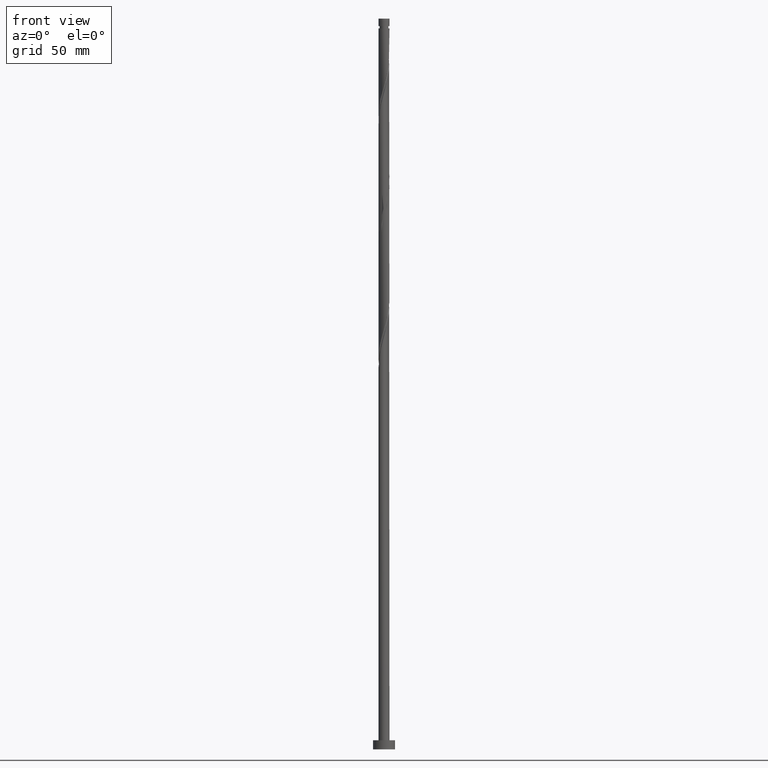
[diagram: clean part render]
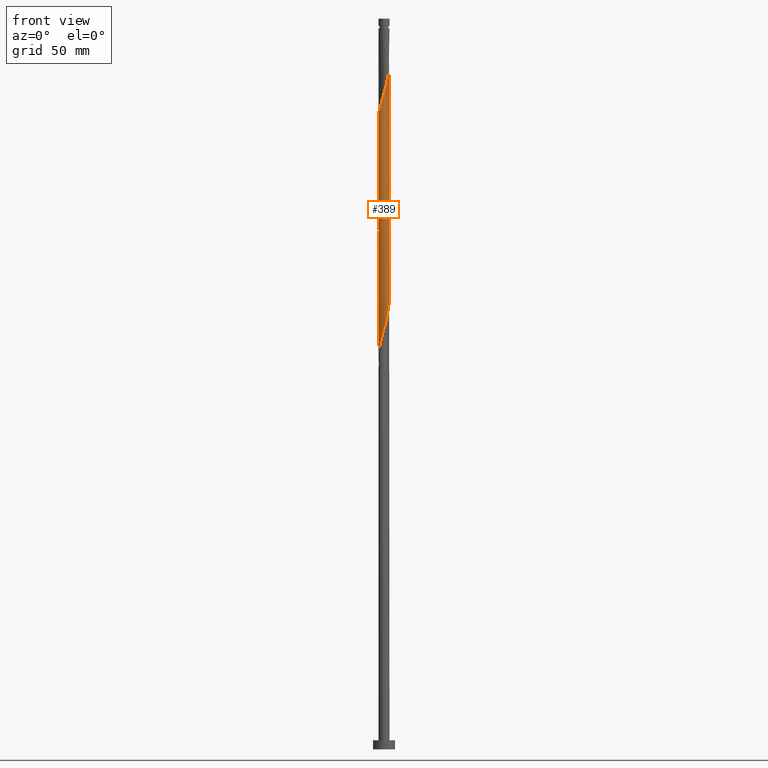
[diagram: same view with one face highlighted and labeled with its STEP entity id]
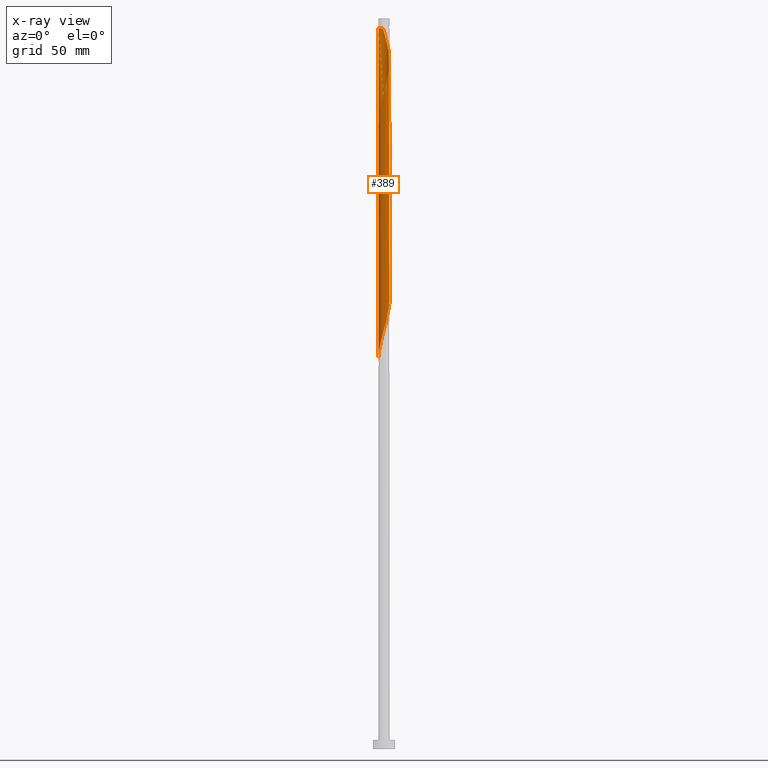
[diagram: x-ray of the same camera — body ghosted, the highlighted face saturated]
A machine part, front view. The second image highlights one B-rep face of the part: STEP entity #389.
The next image is the same camera in x-ray: the body ghosted, the highlighted face saturated — about 0% of this face is hidden behind the body in this view.
In plain terms, the highlighted cylindrical surface (bore or boss wall) has radius 3 mm, axis along (-0, -0, -1).
Its self-contained STEP definition (entity closure, byte-faithful):
#2 = CARTESIAN_POINT ( 'NONE',  ( 2.986297077045549919, -0.2864083930844416037, 312.4611709368597872 ) ) ;
#8 = VERTEX_POINT ( 'NONE', #466 ) ;
#13 = CARTESIAN_POINT ( 'NONE',  ( 0.9582386936374889252, -2.860279830445435767, 300.2389487146376723 ) ) ;
#32 = CARTESIAN_POINT ( 'NONE',  ( 0.9582386936374929221, 2.860279830445437987, 389.1278376035264159 ) ) ;
#35 = CARTESIAN_POINT ( 'NONE',  ( 3.000000000000000888, 1.614428865431810127E-15, 313.4755030692701325 ) ) ;
#56 = CARTESIAN_POINT ( 'NONE',  ( -1.195207115623887928, -2.751632233922626458, 225.7945042701931015 ) ) ;
#64 = CARTESIAN_POINT ( 'NONE',  ( 0.3426132633519641257, 2.997004880578675312, 391.3500598257485308 ) ) ;
#66 = EDGE_LOOP ( 'NONE', ( #1544, #1873, #815, #1641, #1765, #610, #1380, #664 ) ) ;
#68 = CARTESIAN_POINT ( 'NONE',  ( -2.611625341554438151, 1.476283534877587567, 274.6833931590820157 ) ) ;
#71 = CARTESIAN_POINT ( 'NONE',  ( 0.2879860105828867534, 3.002746436205628644, 329.1278376035265296 ) ) ;
#77 = CARTESIAN_POINT ( 'NONE',  ( -2.247618455994260689, 1.987010638188425604, 272.4611709368597872 ) ) ;
#82 = CARTESIAN_POINT ( 'NONE',  ( -2.456461689585819563, 1.750776419202128897, 340.2389487146375018 ) ) ;
#86 = CARTESIAN_POINT ( 'NONE',  ( 2.986297077045549919, -0.2864083930844416037, 245.7945042701931015 ) ) ;
#89 = CARTESIAN_POINT ( 'NONE',  ( 2.211065689225171660, 2.027606598413808747, 321.3500598257485876 ) ) ;
#95 = CARTESIAN_POINT ( 'NONE',  ( -1.997955648279249319, -2.259998966801996634, 289.1278376035264728 ) ) ;
#116 = VERTEX_POINT ( 'NONE', #1490 ) ;
#117 = CARTESIAN_POINT ( 'NONE',  ( 2.584311715169903323, -1.523592123514564634, 370.2389487146375586 ) ) ;
#127 = CARTESIAN_POINT ( 'NONE',  ( -0.6504259784947280520, -2.928642355512055317, 356.9056153813042442 ) ) ;
#130 = CARTESIAN_POINT ( 'NONE',  ( -3.000000000000000444, 0.000000000000000000, 400.0000000000000000 ) ) ;
#183 = CARTESIAN_POINT ( 'NONE',  ( -0.2879860105828880301, -3.002746436205629088, 295.7945042701930447 ) ) ;
#200 = CARTESIAN_POINT ( 'NONE',  ( 2.944774136347767968, 0.6540087066196469401, 249.1278376035264728 ) ) ;
#203 = CARTESIAN_POINT ( 'NONE',  ( -2.611625341554438151, 1.476283534877587567, 341.3500598257486445 ) ) ;
#205 = CARTESIAN_POINT ( 'NONE',  ( 2.611625341554442592, 1.476283534877588677, 381.3500598257487013 ) ) ;
#208 = CARTESIAN_POINT ( 'NONE',  ( 2.424175730171096443, 1.795214230025620639, 253.5722820479709014 ) ) ;
#212 = CARTESIAN_POINT ( 'NONE',  ( -2.861491667719896270, 0.9010357570982429065, 343.5722820479709299 ) ) ;
#217 = CARTESIAN_POINT ( 'NONE',  ( 2.456461689585818675, -1.750776419202130008, 240.2389487146375870 ) ) ;
#220 = CARTESIAN_POINT ( 'NONE',  ( -3.000000000000000888, -9.566985869225540177E-16, 346.8088364026035038 ) ) ;
#226 = CARTESIAN_POINT ( 'NONE',  ( -2.980586974261064448, -0.3407363920471025986, 281.3500598257486445 ) ) ;
#230 = CARTESIAN_POINT ( 'NONE',  ( 0.9059989139450667084, 2.877253563794369917, 326.9056153813041874 ) ) ;
#234 = CARTESIAN_POINT ( 'NONE',  ( 2.584311715169900658, 1.523592123514559749, 252.4611709368597019 ) ) ;
#252 = AXIS2_PLACEMENT_3D ( 'NONE', #1616, #1068, #1187 ) ;
#253 = CARTESIAN_POINT ( 'NONE',  ( 2.211065689225174324, -2.027606598413812744, 368.0167264924152732 ) ) ;
#261 = CARTESIAN_POINT ( 'NONE',  ( -2.247618455994265574, -1.987010638188426936, 350.2389487146376155 ) ) ;
#263 = DIRECTION ( 'NONE',  ( -0.000000000000000000, -0.000000000000000000, -1.000000000000000000 ) ) ;
#299 = CARTESIAN_POINT ( 'NONE',  ( 2.611625341554438151, -1.476283534877588011, 308.0167264924153301 ) ) ;
#307 = CARTESIAN_POINT ( 'NONE',  ( 1.245111594254572740, 2.729413328510884806, 388.0167264924153869 ) ) ;
#339 = CARTESIAN_POINT ( 'NONE',  ( 2.611625341554438151, -1.476283534877588011, 241.3500598257486729 ) ) ;
#348 = CARTESIAN_POINT ( 'NONE',  ( 1.195207115623888594, 2.751632233922626458, 259.1278376035264159 ) ) ;
#357 = CARTESIAN_POINT ( 'NONE',  ( -2.211065689225171216, -2.027606598413808747, 288.0167264924153301 ) ) ;
#364 = EDGE_CURVE ( 'NONE', #1463, #1056, #548, .T. ) ;
#368 = CARTESIAN_POINT ( 'NONE',  ( 2.744447700168707538, 1.251970017003499303, 251.3500598257487013 ) ) ;
#372 = CARTESIAN_POINT ( 'NONE',  ( 3.000000000000000888, 0.1709212123392928606, 314.0810943786546545 ) ) ;
#378 = VECTOR ( 'NONE', #1872, 1000.000000000000000 ) ;
#380 = CARTESIAN_POINT ( 'NONE',  ( -0.2879860105828880301, -3.002746436205629088, 229.1278376035263875 ) ) ;
#389 = ADVANCED_FACE ( 'NONE', ( #845 ), #1730, .T. ) ;
#390 = CARTESIAN_POINT ( 'NONE',  ( -2.956194341916742019, -0.6002808636434374678, 344.6833931590820157 ) ) ;
#408 = CARTESIAN_POINT ( 'NONE',  ( 1.484415317302711035, -2.626010904050888772, 364.6833931590819589 ) ) ;
#461 = CARTESIAN_POINT ( 'NONE',  ( 2.956194341916738466, -0.6002808636434379119, 311.3500598257488150 ) ) ;
#466 = CARTESIAN_POINT ( 'NONE',  ( 3.000000000000000444, 3.673940397442059868E-16, 394.6833931590819589 ) ) ;
#470 = CARTESIAN_POINT ( 'NONE',  ( 2.038775222402703147, -2.223244857174723421, 304.6833931590821294 ) ) ;
#484 = CARTESIAN_POINT ( 'NONE',  ( 2.956194341916742019, 0.6002808636434371348, 378.0167264924153301 ) ) ;
#489 = CARTESIAN_POINT ( 'NONE',  ( -2.861491667719896270, 0.9010357570982429065, 276.9056153813041306 ) ) ;
#494 = CARTESIAN_POINT ( 'NONE',  ( 1.531984494871655222, 2.598546826576329405, 386.9056153813041306 ) ) ;
#497 = CARTESIAN_POINT ( 'NONE',  ( -1.741185482790979400, -2.443004935426439150, 290.2389487146375586 ) ) ;
#500 = CARTESIAN_POINT ( 'NONE',  ( 0.5969924622639761758, 2.939999999999999503, 328.0167264924153301 ) ) ;
#507 = CARTESIAN_POINT ( 'NONE',  ( -2.956194341916738466, 0.6002808636434376899, 278.0167264924154438 ) ) ;
#510 = CARTESIAN_POINT ( 'NONE',  ( 3.000000000000000888, 1.614428865431810127E-15, 313.4755030692701325 ) ) ;
#516 = CARTESIAN_POINT ( 'NONE',  ( 1.741185482790980732, 2.443004935426438706, 256.9056153813041874 ) ) ;
#520 = CARTESIAN_POINT ( 'NONE',  ( -2.956194341916738466, 0.6002808636434376899, 344.6833931590820157 ) ) ;
#525 = CARTESIAN_POINT ( 'NONE',  ( 0.02731362638453692718, -2.999875658392148647, 230.2389487146375302 ) ) ;
#529 = CARTESIAN_POINT ( 'NONE',  ( -0.6504259784947257206, 2.928642355512051321, 332.4611709368597872 ) ) ;
#536 = CARTESIAN_POINT ( 'NONE',  ( -2.744447700168707094, -1.251970017003499747, 218.0167264924153585 ) ) ;
#544 = CARTESIAN_POINT ( 'NONE',  ( -3.000000000000005329, -1.898448758424430341E-15, 342.5579499155604708 ) ) ;
#545 = CARTESIAN_POINT ( 'NONE',  ( -0.3426132633519634596, -2.997004880578674424, 358.0167264924152732 ) ) ;
#548 = LINE ( 'NONE', #130, #378 ) ;
#557 = CARTESIAN_POINT ( 'NONE',  ( -0.9582386936374922559, -2.860279830445437987, 355.7945042701931015 ) ) ;
#567 = CARTESIAN_POINT ( 'NONE',  ( -2.211065689225171216, -2.027606598413808747, 221.3500598257486445 ) ) ;
#568 = CARTESIAN_POINT ( 'NONE',  ( -2.766788993523061180, -1.201790650553048012, 346.9056153813041306 ) ) ;
#579 = CARTESIAN_POINT ( 'NONE',  ( -2.980586974261064448, -0.3407363920471025986, 214.6833931590819873 ) ) ;
#580 = CARTESIAN_POINT ( 'NONE',  ( -2.611625341554442592, -1.476283534877588899, 348.0167264924152732 ) ) ;
#598 = CARTESIAN_POINT ( 'NONE',  ( 2.861491667719896270, -0.9010357570982445718, 310.2389487146375586 ) ) ;
#610 = ORIENTED_EDGE ( 'NONE', *, *, #1264, .F. ) ;
#645 = CARTESIAN_POINT ( 'NONE',  ( -1.484415317302709703, -2.626010904050884331, 224.6833931590820441 ) ) ;
#655 = CARTESIAN_POINT ( 'NONE',  ( -1.531984494871650337, 2.598546826576327184, 269.1278376035264728 ) ) ;
#658 = CARTESIAN_POINT ( 'NONE',  ( -0.9582386936374893693, 2.860279830445435767, 333.5722820479709299 ) ) ;
#663 = CARTESIAN_POINT ( 'NONE',  ( -0.6504259784947257206, 2.928642355512051321, 265.7945042701931015 ) ) ;
#664 = ORIENTED_EDGE ( 'NONE', *, *, #1158, .F. ) ;
#671 = CARTESIAN_POINT ( 'NONE',  ( 0.6504259784947244993, -2.928642355512052209, 232.4611709368597872 ) ) ;
#675 = CARTESIAN_POINT ( 'NONE',  ( 1.484415317302710591, 2.626010904050883887, 324.6833931590820157 ) ) ;
#679 = CARTESIAN_POINT ( 'NONE',  ( -2.844610918258237753, -0.9529893618115735654, 283.5722820479709867 ) ) ;
#684 = EDGE_CURVE ( 'NONE', #1879, #116, #1706, .T. ) ;
#690 = CARTESIAN_POINT ( 'NONE',  ( -2.861491667719902043, -0.9010357570982429065, 345.7945042701931584 ) ) ;
#698 = CARTESIAN_POINT ( 'NONE',  ( -3.000000000000000444, -0.1709212123392981619, 214.0810943786546829 ) ) ;
#700 = CARTESIAN_POINT ( 'NONE',  ( 2.744447700168710202, -1.251970017003502633, 371.3500598257487013 ) ) ;
#723 = CARTESIAN_POINT ( 'NONE',  ( 1.195207115623887484, -2.751632233922633120, 363.5722820479708730 ) ) ;
#726 = CARTESIAN_POINT ( 'NONE',  ( 0.000000000000000000, 0.000000000000000000, 400.0000000000000000 ) ) ;
#741 = CARTESIAN_POINT ( 'NONE',  ( 3.000000000000000444, -0.1435319978602540014, 312.9669545437059810 ) ) ;
#747 = CARTESIAN_POINT ( 'NONE',  ( 2.456461689585818675, -1.750776419202130008, 306.9056153813043011 ) ) ;
#757 = CARTESIAN_POINT ( 'NONE',  ( 1.245111594254569631, -2.729413328510880810, 301.3500598257486445 ) ) ;
#765 =( BOUNDED_CURVE ( )  B_SPLINE_CURVE ( 2, ( #973, #1859, #1112, #390, #690, #568, #580, #1267, #261, #1421, #1850, #1430, #1726, #557, #127, #545, #1120, #865, #1690, #1440, #723, #408, #981, #1563, #253, #842, #117, #700, #1130, #1716, #781, #1217, #1330, #484, #1511, #1802, #205, #790, #1657, #1367, #1772, #494, #307, #32, #772, #64, #1039, #1151, #1628 ),
 .UNSPECIFIED., .F., .T. ) 
 B_SPLINE_CURVE_WITH_KNOTS ( ( 3, 2, 2, 2, 2, 2, 2, 2, 2, 2, 2, 2, 2, 2, 2, 2, 2, 2, 2, 2, 2, 2, 2, 2, 3 ),
 ( 0.5545286012773114059, 0.5583333333333333481, 0.5666666666666666519, 0.5749999999999999556, 0.5833333333333332593, 0.5916666666666666741, 0.5999999999999999778, 0.6083333333333333925, 0.6166666666666666963, 0.6250000000000000000, 0.6333333333333333037, 0.6416666666666666075, 0.6500000000000000222, 0.6583333333333334370, 0.6666666666666668517, 0.6750000000000000444, 0.6833333333333334592, 0.6916666666666667629, 0.7000000000000000666, 0.7083333333333333703, 0.7166666666666667851, 0.7250000000000000888, 0.7333333333333335036, 0.7416666666666668073, 0.7500000000000001110 ),
 .UNSPECIFIED. ) 
 CURVE ( )  GEOMETRIC_REPRESENTATION_ITEM ( )  RATIONAL_B_SPLINE_CURVE ( ( 0.9066196499552512389, 0.9068171577856640742, 0.9090909090909630175, 0.9041108139712111802, 0.9090909090909630175, 0.9041108139712111802, 0.9090909090909630175, 0.9041108139712111802, 0.9090909090909630175, 0.9041108139712111802, 0.9090909090909630175, 0.9041108139712111802, 0.9090909090909630175, 0.9041108139712111802, 0.9090909090909630175, 0.9041108139712111802, 0.9090909090909630175, 0.9041108139712111802, 0.9090909090909630175, 0.9041108139712111802, 0.9090909090909630175, 0.9041108139712111802, 0.9090909090909630175, 0.9041108139712111802, 0.9090909090909630175, 0.9041108139712111802, 0.9090909090909630175, 0.9041108139712111802, 0.9090909090909630175, 0.9041108139712111802, 0.9090909090909630175, 0.9041108139712111802, 0.9090909090909630175, 0.9041108139712111802, 0.9090909090909630175, 0.9041108139712111802, 0.9090909090909630175, 0.9041108139712111802, 0.9090909090909630175, 0.9041108139712111802, 0.9090909090909630175, 0.9041108139712111802, 0.9090909090909630175, 0.9041108139712111802, 0.9090909090909630175, 0.9041108139712111802, 0.9090909090909630175, 0.9041108139712110692, 0.9090909090909631285 ) ) 
 REPRESENTATION_ITEM ( '' )  );
#772 = CARTESIAN_POINT ( 'NONE',  ( 0.6504259784947296064, 2.928642355512054873, 390.2389487146375586 ) ) ;
#781 = CARTESIAN_POINT ( 'NONE',  ( 2.980586974261069333, -0.3407363920471043750, 374.6833931590821294 ) ) ;
#784 = CARTESIAN_POINT ( 'NONE',  ( 1.484415317302710591, 2.626010904050883887, 258.0167264924153301 ) ) ;
#789 = EDGE_CURVE ( 'NONE', #1879, #1433, #765, .T. ) ;
#790 = CARTESIAN_POINT ( 'NONE',  ( 2.456461689585824892, 1.750776419202128897, 382.4611709368597303 ) ) ;
#795 = CARTESIAN_POINT ( 'NONE',  ( 2.980586974261064448, 0.3407363920471022656, 248.0167264924153585 ) ) ;
#803 = CARTESIAN_POINT ( 'NONE',  ( 0.5969924622639761758, 2.939999999999999503, 261.3500598257487013 ) ) ;
#814 = CARTESIAN_POINT ( 'NONE',  ( 0.2879860105828867534, 3.002746436205628644, 262.4611709368598440 ) ) ;
#815 = ORIENTED_EDGE ( 'NONE', *, *, #789, .F. ) ;
#818 = CARTESIAN_POINT ( 'NONE',  ( 1.741185482790980732, 2.443004935426438706, 323.5722820479708730 ) ) ;
#824 = CARTESIAN_POINT ( 'NONE',  ( -2.584311715169900214, -1.523592123514559971, 285.7945042701931015 ) ) ;
#842 = CARTESIAN_POINT ( 'NONE',  ( 2.424175730171096887, -1.795214230025625968, 369.1278376035264159 ) ) ;
#845 = FACE_OUTER_BOUND ( 'NONE', #66, .T. ) ;
#865 = CARTESIAN_POINT ( 'NONE',  ( 0.2879860105828858097, -3.002746436205632197, 360.2389487146376723 ) ) ;
#878 = EDGE_CURVE ( 'NONE', #1463, #1433, #1076, .T. ) ;
#884 = CARTESIAN_POINT ( 'NONE',  ( 3.000000000000000888, 1.614428865431810127E-15, 313.4755030692701325 ) ) ;
#898 = CARTESIAN_POINT ( 'NONE',  ( 2.247618455994260689, -1.987010638188426048, 305.7945042701930447 ) ) ;
#907 = CARTESIAN_POINT ( 'NONE',  ( 1.531984494871650115, -2.598546826576327184, 302.4611709368597303 ) ) ;
#924 = CARTESIAN_POINT ( 'NONE',  ( 1.785379858637176298, -2.410895841875525303, 236.9056153813041874 ) ) ;
#934 = CARTESIAN_POINT ( 'NONE',  ( -0.02731362638453766964, 2.999875658392149091, 263.5722820479708162 ) ) ;
#937 = CARTESIAN_POINT ( 'NONE',  ( -1.245111594254569853, 2.729413328510880810, 334.6833931590820157 ) ) ;
#943 = CARTESIAN_POINT ( 'NONE',  ( 2.844610918258238197, 0.9529893618115723442, 250.2389487146375302 ) ) ;
#946 = CARTESIAN_POINT ( 'NONE',  ( -2.247618455994260689, 1.987010638188425604, 339.1278376035263591 ) ) ;
#951 = CARTESIAN_POINT ( 'NONE',  ( 0.9582386936374889252, -2.860279830445435767, 233.5722820479708730 ) ) ;
#961 = CARTESIAN_POINT ( 'NONE',  ( -2.744447700168707094, -1.251970017003499747, 284.6833931590820725 ) ) ;
#965 = CARTESIAN_POINT ( 'NONE',  ( -2.986297077045549919, 0.2864083930844405490, 345.7945042701931015 ) ) ;
#971 = CARTESIAN_POINT ( 'NONE',  ( -2.584311715169900214, -1.523592123514559971, 219.1278376035264159 ) ) ;
#973 = CARTESIAN_POINT ( 'NONE',  ( -3.000000000000005329, -1.898448758424430341E-15, 342.5579499155605276 ) ) ;
#975 = CARTESIAN_POINT ( 'NONE',  ( -1.785379858637176742, 2.410895841875524859, 336.9056153813042442 ) ) ;
#980 = CARTESIAN_POINT ( 'NONE',  ( -2.424175730171095111, -1.795214230025621971, 220.2389487146375302 ) ) ;
#981 = CARTESIAN_POINT ( 'NONE',  ( 1.741185482790980066, -2.443004935426445368, 365.7945042701931015 ) ) ;
#988 = VECTOR ( 'NONE', #1143, 1000.000000000000000 ) ;
#1000 = CARTESIAN_POINT ( 'NONE',  ( -1.997955648279249319, -2.259998966801996634, 222.4611709368597303 ) ) ;
#1009 = CARTESIAN_POINT ( 'NONE',  ( -0.5969924622640415679, 2.940000000000872582, 394.6833931590818452 ) ) ;
#1039 = CARTESIAN_POINT ( 'NONE',  ( 0.02731362638453996294, 2.999875658392153088, 392.4611709368598440 ) ) ;
#1056 = VERTEX_POINT ( 'NONE', #1637 ) ;
#1063 = CARTESIAN_POINT ( 'NONE',  ( -0.9582386936374893693, 2.860279830445435767, 266.9056153813043011 ) ) ;
#1068 = DIRECTION ( 'NONE',  ( -0.000000000000000000, -0.000000000000000000, -1.000000000000000000 ) ) ;
#1071 = CARTESIAN_POINT ( 'NONE',  ( -2.944774136347767968, -0.6540087066196482724, 282.4611709368596735 ) ) ;
#1076 = CIRCLE ( 'NONE', #252, 2.999999999999964473 ) ;
#1082 = CARTESIAN_POINT ( 'NONE',  ( -2.766788993523056295, 1.201790650553048012, 275.7945042701931015 ) ) ;
#1089 = CARTESIAN_POINT ( 'NONE',  ( 2.766788993523055851, -1.201790650553048678, 242.4611709368597872 ) ) ;
#1093 = CARTESIAN_POINT ( 'NONE',  ( -0.3426132633519623494, 2.997004880578669983, 331.3500598257486445 ) ) ;
#1099 = CARTESIAN_POINT ( 'NONE',  ( -1.195207115623887928, -2.751632233922626458, 292.4611709368598440 ) ) ;
#1102 = CARTESIAN_POINT ( 'NONE',  ( 2.944774136347767968, 0.6540087066196469401, 315.7945042701930447 ) ) ;
#1112 = CARTESIAN_POINT ( 'NONE',  ( -2.986297077045553916, -0.2864083930844393833, 343.5722820479708162 ) ) ;
#1114 = CARTESIAN_POINT ( 'NONE',  ( -3.000000000000000444, 0.1435319978602473123, 346.3002878770394091 ) ) ;
#1120 = CARTESIAN_POINT ( 'NONE',  ( -0.02731362638453954314, -2.999875658392153088, 359.1278376035264159 ) ) ;
#1130 = CARTESIAN_POINT ( 'NONE',  ( 2.844610918258240861, -0.9529893618115774512, 372.4611709368599008 ) ) ;
#1143 = DIRECTION ( 'NONE',  ( -0.000000000000000000, -0.000000000000000000, -1.000000000000000000 ) ) ;
#1151 = CARTESIAN_POINT ( 'NONE',  ( -0.2879860105828883632, 3.002746436205632197, 393.5722820479708162 ) ) ;
#1154 = DIRECTION ( 'NONE',  ( -1.000000000000000000, 0.000000000000000000, 0.000000000000000000 ) ) ;
#1158 = EDGE_CURVE ( 'NONE', #1056, #1754, #1750, .T. ) ;
#1162 =( BOUNDED_CURVE ( )  B_SPLINE_CURVE ( 2, ( #884, #741, #2, #461, #598, #1172, #299, #747, #898, #470, #1325, #907, #757, #13, #1775, #1485, #1631, #183, #1652, #1388, #1099, #1249, #497, #95, #357, #1398, #824, #961, #679, #1071, #226, #1257, #1526, #507, #489, #1082, #68, #1832, #77, #1370, #1543, #655, #1671, #1063, #663, #1221, #934, #814, #803, #1806, #348, #784, #516, #1514, #1662, #208, #234, #368, #943, #200, #795, #1230, #86, #1687, #1814, #1089, #339, #217, #1379, #1240, #924, #1823, #1679, #951, #671, #1534, #525, #380, #1362, #1505, #56, #645, #1868, #1000, #567, #980, #971, #536, #1419, #1583, #579, #698, #1714 ),
 .UNSPECIFIED., .F., .T. ) 
 B_SPLINE_CURVE_WITH_KNOTS ( ( 3, 2, 2, 2, 2, 2, 2, 2, 2, 2, 2, 2, 2, 2, 2, 2, 2, 2, 2, 2, 2, 2, 2, 2, 2, 2, 2, 2, 2, 2, 2, 2, 2, 2, 2, 2, 2, 2, 2, 2, 2, 2, 2, 2, 2, 2, 3 ),
 ( 0.5545286012773115170, 0.5583333333333333481, 0.5666666666666666519, 0.5749999999999999556, 0.5833333333333333703, 0.5916666666666666741, 0.5999999999999999778, 0.6083333333333332815, 0.6166666666666666963, 0.6250000000000000000, 0.6333333333333333037, 0.6416666666666667185, 0.6500000000000000222, 0.6583333333333333259, 0.6666666666666666297, 0.6750000000000000444, 0.6833333333333333481, 0.6916666666666666519, 0.6999999999999999556, 0.7083333333333333703, 0.7166666666666666741, 0.7249999999999999778, 0.7333333333333332815, 0.7416666666666666963, 0.7500000000000000000, 0.7583333333333333037, 0.7666666666666667185, 0.7750000000000000222, 0.7833333333333333259, 0.7916666666666666297, 0.8000000000000000444, 0.8083333333333333481, 0.8166666666666666519, 0.8249999999999999556, 0.8333333333333333703, 0.8416666666666666741, 0.8499999999999999778, 0.8583333333333332815, 0.8666666666666666963, 0.8750000000000000000, 0.8833333333333333037, 0.8916666666666667185, 0.9000000000000001332, 0.9083333333333334370, 0.9166666666666667407, 0.9250000000000000444, 0.9295286012773114059 ),
 .UNSPECIFIED. ) 
 CURVE ( )  GEOMETRIC_REPRESENTATION_ITEM ( )  RATIONAL_B_SPLINE_CURVE ( ( 0.9066196499552450216, 0.9068171577856578569, 0.9090909090909568002, 0.9041108139712048519, 0.9090909090909568002, 0.9041108139712048519, 0.9090909090909568002, 0.9041108139712048519, 0.9090909090909568002, 0.9041108139712048519, 0.9090909090909568002, 0.9041108139712048519, 0.9090909090909568002, 0.9041108139712048519, 0.9090909090909568002, 0.9041108139712048519, 0.9090909090909568002, 0.9041108139712048519, 0.9090909090909568002, 0.9041108139712048519, 0.9090909090909568002, 0.9041108139712048519, 0.9090909090909568002, 0.9041108139712048519, 0.9090909090909568002, 0.9041108139712048519, 0.9090909090909568002, 0.9041108139712048519, 0.9090909090909568002, 0.9041108139712048519, 0.9090909090909568002, 0.9041108139712048519, 0.9090909090909568002, 0.9041108139712048519, 0.9090909090909568002, 0.9041108139712048519, 0.9090909090909568002, 0.9041108139712048519, 0.9090909090909568002, 0.9041108139712048519, 0.9090909090909568002, 0.9041108139712048519, 0.9090909090909568002, 0.9041108139712048519, 0.9090909090909568002, 0.9041108139712048519, 0.9090909090909568002, 0.9041108139712048519, 0.9090909090909568002, 0.9041108139712048519, 0.9090909090909568002, 0.9041108139712048519, 0.9090909090909568002, 0.9041108139712048519, 0.9090909090909568002, 0.9041108139712048519, 0.9090909090909568002, 0.9041108139712048519, 0.9090909090909568002, 0.9041108139712048519, 0.9090909090909568002, 0.9041108139712048519, 0.9090909090909568002, 0.9041108139712048519, 0.9090909090909568002, 0.9041108139712048519, 0.9090909090909568002, 0.9041108139712048519, 0.9090909090909568002, 0.9041108139712048519, 0.9090909090909568002, 0.9041108139712048519, 0.9090909090909568002, 0.9041108139712048519, 0.9090909090909568002, 0.9041108139712048519, 0.9090909090909568002, 0.9041108139712048519, 0.9090909090909568002, 0.9041108139712048519, 0.9090909090909568002, 0.9041108139712048519, 0.9090909090909568002, 0.9041108139712048519, 0.9090909090909568002, 0.9041108139712048519, 0.9090909090909568002, 0.9041108139712048519, 0.9090909090909568002, 0.9041108139712048519, 0.9090909090909568002, 0.9063845652765039063, 0.9066196499552450216 ) ) 
 REPRESENTATION_ITEM ( '' )  );
#1172 = CARTESIAN_POINT ( 'NONE',  ( 2.766788993523055851, -1.201790650553048678, 309.1278376035264159 ) ) ;
#1187 = DIRECTION ( 'NONE',  ( -1.000000000000000000, 0.000000000000000000, 0.000000000000000000 ) ) ;
#1217 = CARTESIAN_POINT ( 'NONE',  ( 3.016399812174365369, -0.02746407747455914192, 375.7945042701931584 ) ) ;
#1221 = CARTESIAN_POINT ( 'NONE',  ( -0.3426132633519623494, 2.997004880578669983, 264.6833931590820157 ) ) ;
#1224 = CARTESIAN_POINT ( 'NONE',  ( 2.584311715169900658, 1.523592123514559749, 319.1278376035265296 ) ) ;
#1230 = CARTESIAN_POINT ( 'NONE',  ( 3.016399812174360928, 0.02746407747455493001, 246.9056153813043011 ) ) ;
#1234 = CARTESIAN_POINT ( 'NONE',  ( 1.195207115623888594, 2.751632233922626458, 325.7945042701931584 ) ) ;
#1240 = CARTESIAN_POINT ( 'NONE',  ( 2.038775222402703147, -2.223244857174723421, 238.0167264924153585 ) ) ;
#1249 = CARTESIAN_POINT ( 'NONE',  ( -1.484415317302709703, -2.626010904050884331, 291.3500598257487013 ) ) ;
#1252 = CARTESIAN_POINT ( 'NONE',  ( 1.997955648279249763, 2.259998966801996634, 322.4611709368599577 ) ) ;
#1257 = CARTESIAN_POINT ( 'NONE',  ( -3.016399812174360928, -0.02746407747455674106, 280.2389487146375586 ) ) ;
#1264 = EDGE_CURVE ( 'NONE', #8, #1754, #1442, .T. ) ;
#1267 = CARTESIAN_POINT ( 'NONE',  ( -2.456461689585824892, -1.750776419202130008, 349.1278376035264728 ) ) ;
#1325 = CARTESIAN_POINT ( 'NONE',  ( 1.785379858637176298, -2.410895841875525303, 303.5722820479708162 ) ) ;
#1330 = CARTESIAN_POINT ( 'NONE',  ( 2.986297077045553916, 0.2864083930844378290, 376.9056153813041306 ) ) ;
#1351 = AXIS2_PLACEMENT_3D ( 'NONE', #726, #1424, #1154 ) ;
#1362 = CARTESIAN_POINT ( 'NONE',  ( -0.5969924622639756207, -2.939999999999999503, 228.0167264924153585 ) ) ;
#1365 = CARTESIAN_POINT ( 'NONE',  ( 2.744447700168707538, 1.251970017003499303, 318.0167264924154438 ) ) ;
#1367 = CARTESIAN_POINT ( 'NONE',  ( 2.038775222402707143, 2.223244857174724753, 384.6833931590820157 ) ) ;
#1370 = CARTESIAN_POINT ( 'NONE',  ( -2.038775222402704035, 2.223244857174722533, 271.3500598257486445 ) ) ;
#1373 = CARTESIAN_POINT ( 'NONE',  ( -2.766788993523056295, 1.201790650553048012, 342.4611709368597872 ) ) ;
#1379 = CARTESIAN_POINT ( 'NONE',  ( 2.247618455994260689, -1.987010638188426048, 239.1278376035264444 ) ) ;
#1380 = ORIENTED_EDGE ( 'NONE', *, *, #1264, .T. ) ;
#1383 = CARTESIAN_POINT ( 'NONE',  ( -2.038775222402704035, 2.223244857174722533, 338.0167264924154438 ) ) ;
#1388 = CARTESIAN_POINT ( 'NONE',  ( -0.9059989139450650431, -2.877253563794370805, 293.5722820479709867 ) ) ;
#1398 = CARTESIAN_POINT ( 'NONE',  ( -2.424175730171095111, -1.795214230025621971, 286.9056153813043011 ) ) ;
#1402 = CARTESIAN_POINT ( 'NONE',  ( 2.980586974261064448, 0.3407363920471022656, 314.6833931590819589 ) ) ;
#1411 = CARTESIAN_POINT ( 'NONE',  ( 3.000000000000000444, 3.673940397442059868E-16, 400.0000000000000000 ) ) ;
#1419 = CARTESIAN_POINT ( 'NONE',  ( -2.844610918258237753, -0.9529893618115735654, 216.9056153813042158 ) ) ;
#1421 = CARTESIAN_POINT ( 'NONE',  ( -2.038775222402706699, -2.223244857174725642, 351.3500598257485876 ) ) ;
#1424 = DIRECTION ( 'NONE',  ( -0.000000000000000000, -0.000000000000000000, -1.000000000000000000 ) ) ;
#1430 = CARTESIAN_POINT ( 'NONE',  ( -1.531984494871653668, -2.598546826576330293, 353.5722820479710435 ) ) ;
#1433 = VERTEX_POINT ( 'NONE', #1009 ) ;
#1440 = CARTESIAN_POINT ( 'NONE',  ( 0.9059989139450639328, -2.877253563794377023, 362.4611709368598440 ) ) ;
#1442 = LINE ( 'NONE', #1411, #1567 ) ;
#1452 = CARTESIAN_POINT ( 'NONE',  ( -2.999999999999964473, 0.000000000000000000, 394.6833931590819589 ) ) ;
#1463 = VERTEX_POINT ( 'NONE', #1452 ) ;
#1485 = CARTESIAN_POINT ( 'NONE',  ( 0.3426132633519620718, -2.997004880578670427, 298.0167264924153301 ) ) ;
#1490 = CARTESIAN_POINT ( 'NONE',  ( -3.000000000000000888, -2.899992591608992199E-15, 213.4755030692701894 ) ) ;
#1505 = CARTESIAN_POINT ( 'NONE',  ( -0.9059989139450650431, -2.877253563794370805, 226.9056153813042727 ) ) ;
#1511 = CARTESIAN_POINT ( 'NONE',  ( 2.861491667719902043, 0.9010357570982417963, 379.1278376035263591 ) ) ;
#1514 = CARTESIAN_POINT ( 'NONE',  ( 1.997955648279249763, 2.259998966801996634, 255.7945042701931300 ) ) ;
#1518 = CARTESIAN_POINT ( 'NONE',  ( -0.02731362638453766964, 2.999875658392149091, 330.2389487146376155 ) ) ;
#1526 = CARTESIAN_POINT ( 'NONE',  ( -2.986297077045549919, 0.2864083930844405490, 279.1278376035264159 ) ) ;
#1534 = CARTESIAN_POINT ( 'NONE',  ( 0.3426132633519620718, -2.997004880578670427, 231.3500598257487013 ) ) ;
#1543 = CARTESIAN_POINT ( 'NONE',  ( -1.785379858637176742, 2.410895841875524859, 270.2389487146375018 ) ) ;
#1544 = ORIENTED_EDGE ( 'NONE', *, *, #364, .F. ) ;
#1553 = CARTESIAN_POINT ( 'NONE',  ( -3.000000000000000444, 0.000000000000000000, 400.0000000000000000 ) ) ;
#1563 = CARTESIAN_POINT ( 'NONE',  ( 1.997955648279249763, -2.259998966802001519, 366.9056153813042442 ) ) ;
#1567 = VECTOR ( 'NONE', #263, 1000.000000000000000 ) ;
#1583 = CARTESIAN_POINT ( 'NONE',  ( -2.944774136347767968, -0.6540087066196482724, 215.7945042701931300 ) ) ;
#1616 = CARTESIAN_POINT ( 'NONE',  ( 0.000000000000000000, 0.000000000000000000, 394.6833931590819589 ) ) ;
#1628 = CARTESIAN_POINT ( 'NONE',  ( -0.5969924622640415679, 2.940000000000872582, 394.6833931590818452 ) ) ;
#1631 = CARTESIAN_POINT ( 'NONE',  ( 0.02731362638453692718, -2.999875658392148647, 296.9056153813042442 ) ) ;
#1637 = CARTESIAN_POINT ( 'NONE',  ( -3.000000000000000888, -9.566985869225540177E-16, 346.8088364026035038 ) ) ;
#1641 = ORIENTED_EDGE ( 'NONE', *, *, #684, .T. ) ;
#1652 = CARTESIAN_POINT ( 'NONE',  ( -0.5969924622639756207, -2.939999999999999503, 294.6833931590819020 ) ) ;
#1657 = CARTESIAN_POINT ( 'NONE',  ( 2.247618455994266906, 1.987010638188426048, 383.5722820479707593 ) ) ;
#1662 = CARTESIAN_POINT ( 'NONE',  ( 2.211065689225171660, 2.027606598413808747, 254.6833931590820157 ) ) ;
#1671 = CARTESIAN_POINT ( 'NONE',  ( -1.245111594254569853, 2.729413328510880810, 268.0167264924152732 ) ) ;
#1674 = CARTESIAN_POINT ( 'NONE',  ( 2.844610918258238197, 0.9529893618115723442, 316.9056153813042442 ) ) ;
#1679 = CARTESIAN_POINT ( 'NONE',  ( 1.245111594254569631, -2.729413328510880810, 234.6833931590819873 ) ) ;
#1683 = CARTESIAN_POINT ( 'NONE',  ( -1.531984494871650337, 2.598546826576327184, 335.7945042701931584 ) ) ;
#1687 = CARTESIAN_POINT ( 'NONE',  ( 2.956194341916738466, -0.6002808636434379119, 244.6833931590819873 ) ) ;
#1690 = CARTESIAN_POINT ( 'NONE',  ( 0.5969924622639755096, -2.940000000000003944, 361.3500598257485876 ) ) ;
#1706 = LINE ( 'NONE', #1553, #988 ) ;
#1714 = CARTESIAN_POINT ( 'NONE',  ( -3.000000000000000888, -2.899992591608992199E-15, 213.4755030692701894 ) ) ;
#1716 = CARTESIAN_POINT ( 'NONE',  ( 2.944774136347772409, -0.6540087066196522692, 373.5722820479708730 ) ) ;
#1726 = CARTESIAN_POINT ( 'NONE',  ( -1.245111594254572740, -2.729413328510884806, 354.6833931590819020 ) ) ;
#1730 = CYLINDRICAL_SURFACE ( 'NONE', #1351, 3.000000000000000444 ) ;
#1750 =( BOUNDED_CURVE ( )  B_SPLINE_CURVE ( 2, ( #220, #1114, #965, #520, #212, #1373, #203, #82, #946, #1383, #975, #1683, #937, #658, #529, #1093, #1518, #71, #500, #230, #1234, #675, #818, #1252, #89, #1817, #1224, #1365, #1674, #1102, #1402, #372, #510 ),
 .UNSPECIFIED., .F., .T. ) 
 B_SPLINE_CURVE_WITH_KNOTS ( ( 3, 2, 2, 2, 2, 2, 2, 2, 2, 2, 2, 2, 2, 2, 2, 2, 3 ),
 ( 0.4295286012773113504, 0.4333333333333333481, 0.4416666666666666519, 0.4500000000000000111, 0.4583333333333333148, 0.4666666666666666741, 0.4749999999999999778, 0.4833333333333333370, 0.4916666666666666408, 0.5000000000000000000, 0.5083333333333333037, 0.5166666666666667185, 0.5250000000000000222, 0.5333333333333333259, 0.5416666666666666297, 0.5500000000000000444, 0.5545286012773115170 ),
 .UNSPECIFIED. ) 
 CURVE ( )  GEOMETRIC_REPRESENTATION_ITEM ( )  RATIONAL_B_SPLINE_CURVE ( ( 0.9066196499552450216, 0.9068171577856577459, 0.9090909090909568002, 0.9041108139712048519, 0.9090909090909568002, 0.9041108139712048519, 0.9090909090909568002, 0.9041108139712048519, 0.9090909090909568002, 0.9041108139712048519, 0.9090909090909568002, 0.9041108139712048519, 0.9090909090909568002, 0.9041108139712048519, 0.9090909090909568002, 0.9041108139712048519, 0.9090909090909568002, 0.9041108139712048519, 0.9090909090909568002, 0.9041108139712048519, 0.9090909090909568002, 0.9041108139712048519, 0.9090909090909568002, 0.9041108139712048519, 0.9090909090909568002, 0.9041108139712048519, 0.9090909090909568002, 0.9041108139712048519, 0.9090909090909568002, 0.9041108139712048519, 0.9090909090909568002, 0.9063845652765037952, 0.9066196499552450216 ) ) 
 REPRESENTATION_ITEM ( '' )  );
#1754 = VERTEX_POINT ( 'NONE', #35 ) ;
#1765 = ORIENTED_EDGE ( 'NONE', *, *, #1838, .F. ) ;
#1772 = CARTESIAN_POINT ( 'NONE',  ( 1.785379858637181183, 2.410895841875527079, 385.7945042701931015 ) ) ;
#1775 = CARTESIAN_POINT ( 'NONE',  ( 0.6504259784947244993, -2.928642355512052209, 299.1278376035265296 ) ) ;
#1802 = CARTESIAN_POINT ( 'NONE',  ( 2.766788993523062512, 1.201790650553046680, 380.2389487146375586 ) ) ;
#1806 = CARTESIAN_POINT ( 'NONE',  ( 0.9059989139450667084, 2.877253563794369917, 260.2389487146375586 ) ) ;
#1814 = CARTESIAN_POINT ( 'NONE',  ( 2.861491667719896270, -0.9010357570982445718, 243.5722820479709014 ) ) ;
#1817 = CARTESIAN_POINT ( 'NONE',  ( 2.424175730171096443, 1.795214230025620639, 320.2389487146375586 ) ) ;
#1823 = CARTESIAN_POINT ( 'NONE',  ( 1.531984494871650115, -2.598546826576327184, 235.7945042701931300 ) ) ;
#1832 = CARTESIAN_POINT ( 'NONE',  ( -2.456461689585819563, 1.750776419202128897, 273.5722820479710435 ) ) ;
#1838 = EDGE_CURVE ( 'NONE', #1754, #116, #1162, .T. ) ;
#1850 = CARTESIAN_POINT ( 'NONE',  ( -1.785379858637180517, -2.410895841875527079, 352.4611709368598440 ) ) ;
#1859 = CARTESIAN_POINT ( 'NONE',  ( -3.000000000000004441, -0.1435319978602471735, 343.0664984411244518 ) ) ;
#1868 = CARTESIAN_POINT ( 'NONE',  ( -1.741185482790979400, -2.443004935426439150, 223.5722820479708446 ) ) ;
#1872 = DIRECTION ( 'NONE',  ( -0.000000000000000000, -0.000000000000000000, -1.000000000000000000 ) ) ;
#1873 = ORIENTED_EDGE ( 'NONE', *, *, #878, .T. ) ;
#1879 = VERTEX_POINT ( 'NONE', #544 ) ;